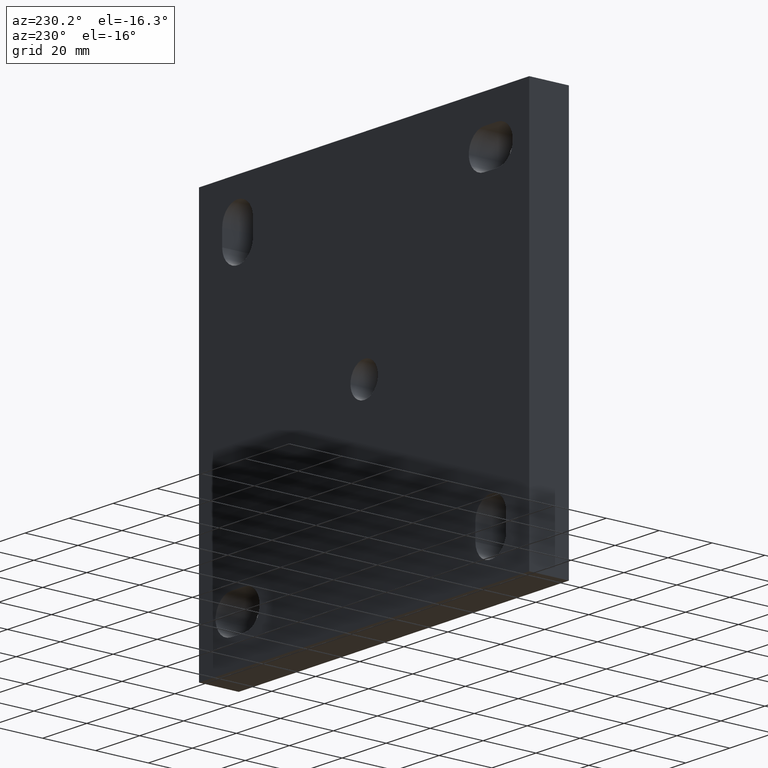
[diagram: clean part render]
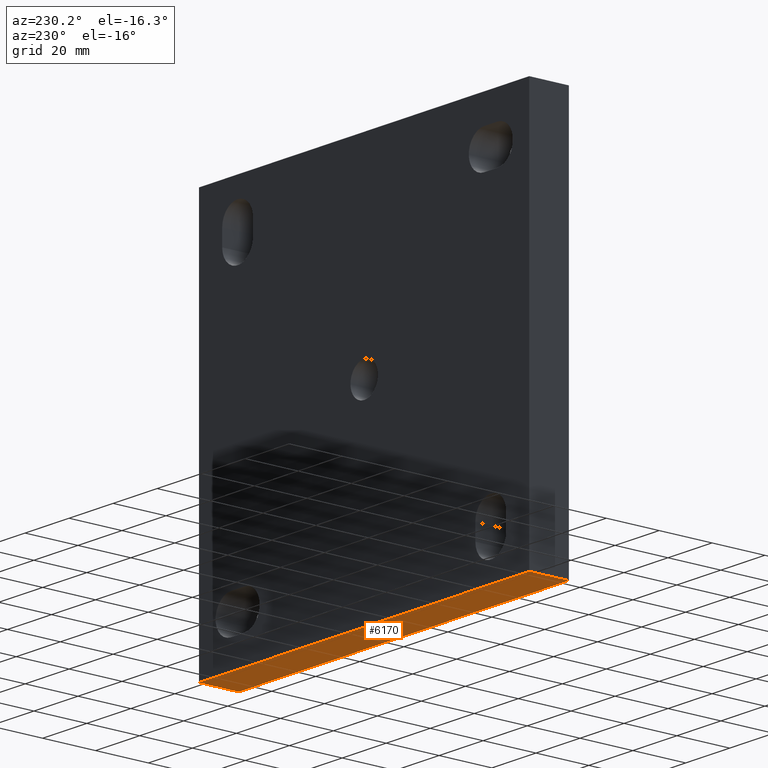
[diagram: same view with one face highlighted and labeled with its STEP entity id]
A machine part, auxiliary view. The second image highlights one B-rep face of the part: STEP entity #6170.
In plain terms, the highlighted planar face has unit normal (0, 0, 1).
Its self-contained STEP definition (entity closure, byte-faithful):
#14 = EDGE_CURVE ( 'NONE', #11921, #2010, #2054, .T. ) ;
#681 = ORIENTED_EDGE ( 'NONE', *, *, #1487, .F. ) ;
#825 = CARTESIAN_POINT ( 'NONE',  ( 74.99999999999998579, 15.00000000000000000, -74.99999999999998579 ) ) ;
#1394 = VECTOR ( 'NONE', #3537, 1000.000000000000000 ) ;
#1487 = EDGE_CURVE ( 'NONE', #12367, #2288, #13065, .T. ) ;
#2010 = VERTEX_POINT ( 'NONE', #3729 ) ;
#2054 = LINE ( 'NONE', #10053, #1394 ) ;
#2288 = VERTEX_POINT ( 'NONE', #13222 ) ;
#2857 = CARTESIAN_POINT ( 'NONE',  ( -75.00000000000001421, 15.00000000000000000, -74.99999999999998579 ) ) ;
#3037 = ORIENTED_EDGE ( 'NONE', *, *, #8797, .T. ) ;
#3086 = DIRECTION ( 'NONE',  ( 1.000000000000000000, 0.000000000000000000, -0.000000000000000000 ) ) ;
#3138 = VECTOR ( 'NONE', #6287, 1000.000000000000000 ) ;
#3530 = LINE ( 'NONE', #11508, #11876 ) ;
#3537 = DIRECTION ( 'NONE',  ( -0.000000000000000000, -1.000000000000000000, -0.000000000000000000 ) ) ;
#3729 = CARTESIAN_POINT ( 'NONE',  ( 74.99999999999998579, 0.000000000000000000, -74.99999999999998579 ) ) ;
#3979 = PLANE ( 'NONE',  #10165 ) ;
#3989 = CARTESIAN_POINT ( 'NONE',  ( -75.00000000000001421, 15.00000000000000000, -74.99999999999998579 ) ) ;
#4170 = EDGE_LOOP ( 'NONE', ( #3037, #681, #10429, #13613 ) ) ;
#4668 = FACE_OUTER_BOUND ( 'NONE', #4170, .T. ) ;
#5034 = DIRECTION ( 'NONE',  ( -1.000000000000000000, -0.000000000000000000, -0.000000000000000000 ) ) ;
#5073 = VECTOR ( 'NONE', #10467, 1000.000000000000000 ) ;
#6170 = ADVANCED_FACE ( 'NONE', ( #4668 ), #3979, .F. ) ;
#6287 = DIRECTION ( 'NONE',  ( -1.000000000000000000, -0.000000000000000000, -0.000000000000000000 ) ) ;
#8467 = CARTESIAN_POINT ( 'NONE',  ( -75.00000000000001421, 15.00000000000000000, -74.99999999999998579 ) ) ;
#8797 = EDGE_CURVE ( 'NONE', #2010, #2288, #3530, .T. ) ;
#10053 = CARTESIAN_POINT ( 'NONE',  ( 74.99999999999998579, 15.00000000000000000, -74.99999999999998579 ) ) ;
#10165 = AXIS2_PLACEMENT_3D ( 'NONE', #8467, #11886, #3086 ) ;
#10429 = ORIENTED_EDGE ( 'NONE', *, *, #12042, .F. ) ;
#10451 = LINE ( 'NONE', #3989, #3138 ) ;
#10467 = DIRECTION ( 'NONE',  ( -0.000000000000000000, -1.000000000000000000, -0.000000000000000000 ) ) ;
#11508 = CARTESIAN_POINT ( 'NONE',  ( -75.00000000000001421, 0.000000000000000000, -74.99999999999998579 ) ) ;
#11542 = CARTESIAN_POINT ( 'NONE',  ( -75.00000000000001421, 15.00000000000000000, -74.99999999999998579 ) ) ;
#11876 = VECTOR ( 'NONE', #5034, 1000.000000000000000 ) ;
#11886 = DIRECTION ( 'NONE',  ( 0.000000000000000000, 0.000000000000000000, 1.000000000000000000 ) ) ;
#11921 = VERTEX_POINT ( 'NONE', #825 ) ;
#12042 = EDGE_CURVE ( 'NONE', #11921, #12367, #10451, .T. ) ;
#12367 = VERTEX_POINT ( 'NONE', #11542 ) ;
#13065 = LINE ( 'NONE', #2857, #5073 ) ;
#13222 = CARTESIAN_POINT ( 'NONE',  ( -75.00000000000001421, 0.000000000000000000, -74.99999999999998579 ) ) ;
#13613 = ORIENTED_EDGE ( 'NONE', *, *, #14, .T. ) ;